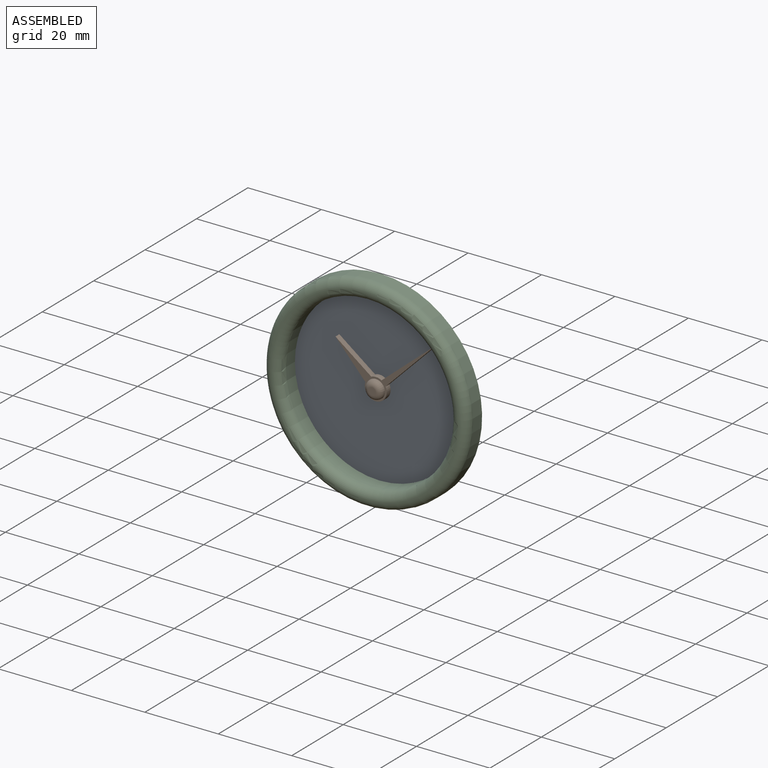
[diagram: assembled view]
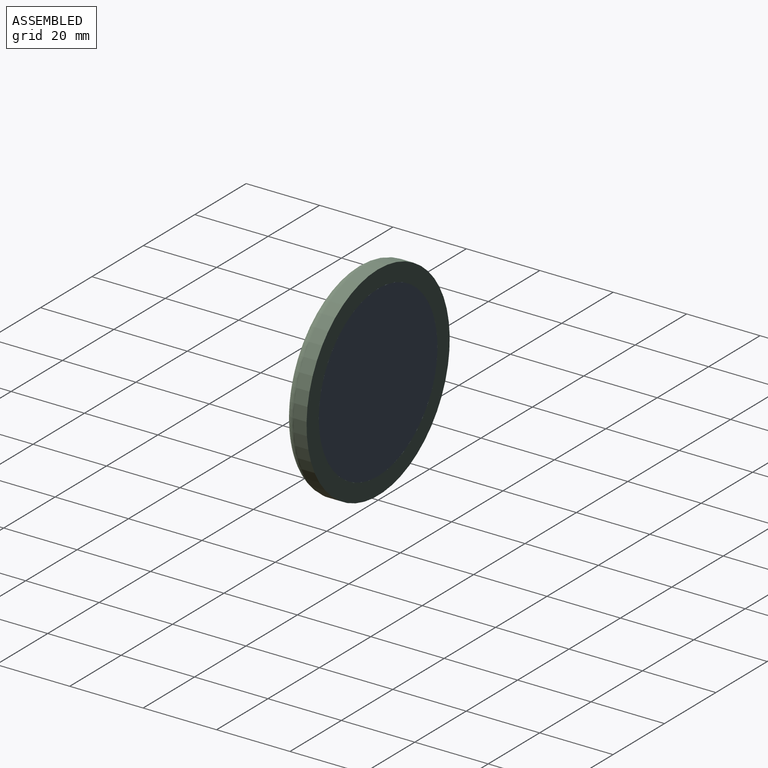
[diagram: assembled view, second angle]
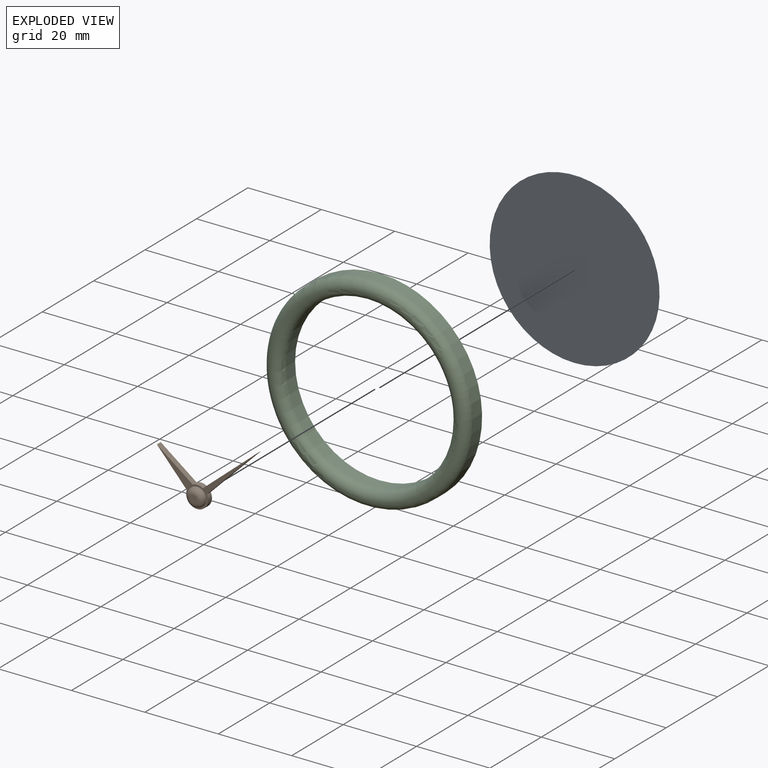
[diagram: exploded view]
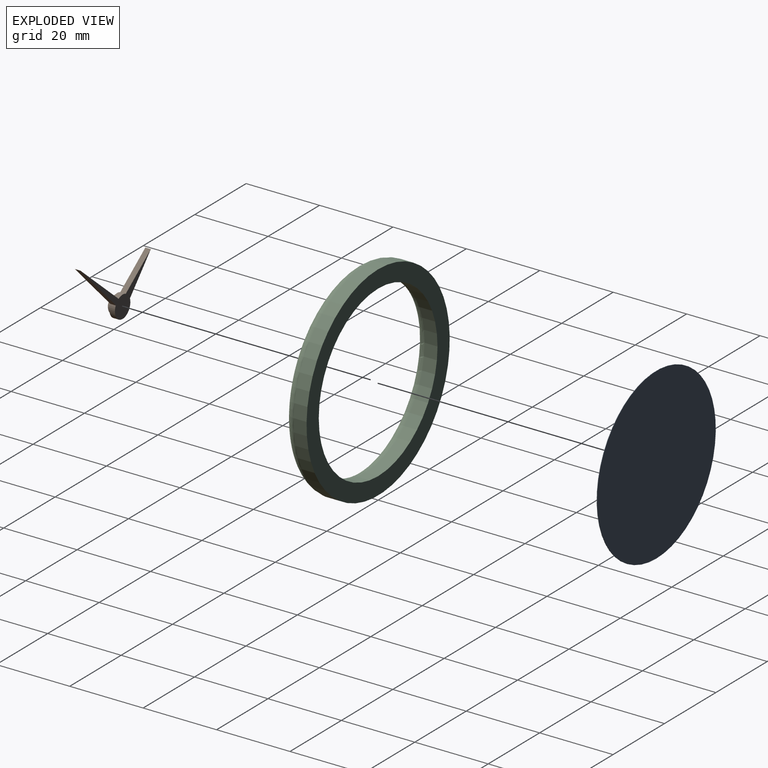
[diagram: exploded view, second angle]
ASSEMBLY  parts=3 mates=2
PART A: 3 faces, bbox 46.2x0.1x46.2 mm
  f0: cylinder r=23.1mm len=46.2mm, axis (0,1,0), area 14.5mm2, adj f1,f2
  f1: plane 46.2x46.2mm, normal (0,-1,0), area 1676.4mm2, adj f0
  f2: plane 46.2x46.2mm, normal (0,1,0), area 1676.4mm2, adj f0
PART B: 10 faces, bbox 27.4x3x18.2 mm
  f0: plane 2x2mm, normal (0,-1,0), area 3.1mm2, adj f1
  f1: torus R=1mm, axis (0,-1,0), area 28.9mm2, adj f0,f8
  f2: cylinder r=3mm len=6mm, axis (0,1,0), area 17.7mm2, adj f3,f7,f8,f9
  f3: plane 13.8x13.75mm, normal (0.71,0,-0.71), area 29.2mm2, adj f2,f4,f8,f9
  f4: plane 14.86x12.6mm, normal (-0.65,0,0.76), area 29.2mm2, adj f3,f5,f8,f9
  f5: cylinder r=3mm len=2.8mm, axis (0,1,0), area 4.4mm2, adj f4,f6,f8,f9
  f6: plane 9.74x7.27mm, normal (0.6,0,0.8), area 18.2mm2, adj f5,f7,f8,f9
  f7: plane 9.03x8.14mm, normal (-0.74,0,-0.67), area 18.2mm2, adj f2,f6,f8,f9
  f8: plane 27.4x18.16mm, normal (0,-1,0), area 38.4mm2, adj f1,f2,f3,f4,f5,f6,f7
  f9: plane 27.4x18.16mm, normal (0,1,0), area 58.1mm2, adj f2,f3,f4,f5,f6,f7
PART C: 6 faces, bbox 60.3x5.9x60.3 mm
  f0: cylinder r=27.85mm len=55.7mm, axis (0,1,0), area 621.2mm2, adj f1,f5
  f1: torus R=25.5mm, axis (0,1,0), area 626.1mm2, adj f0,f2
  f2: plane 51x51mm, normal (0,-1,0), area 8mm2, adj f1,f3
  f3: torus R=25.45mm, axis (0,1,0), area 555.6mm2, adj f2,f4
  f4: cylinder r=23.1mm len=46.2mm, axis (0,1,0), area 515.3mm2, adj f3,f5
  f5: plane 55.7x55.7mm, normal (0,1,0), area 760.3mm2, adj f0,f4
PLACE A at identity
PLACE B t=(0,-0.1,0)mm
PLACE C at identity
MATE fastened B.f5 <-> A.f0  axis (0,1,0) through (0,-0.1,0)mm
MATE fastened A.f0 <-> C.f0  axis (0,1,0) through (0,0,0)mm
